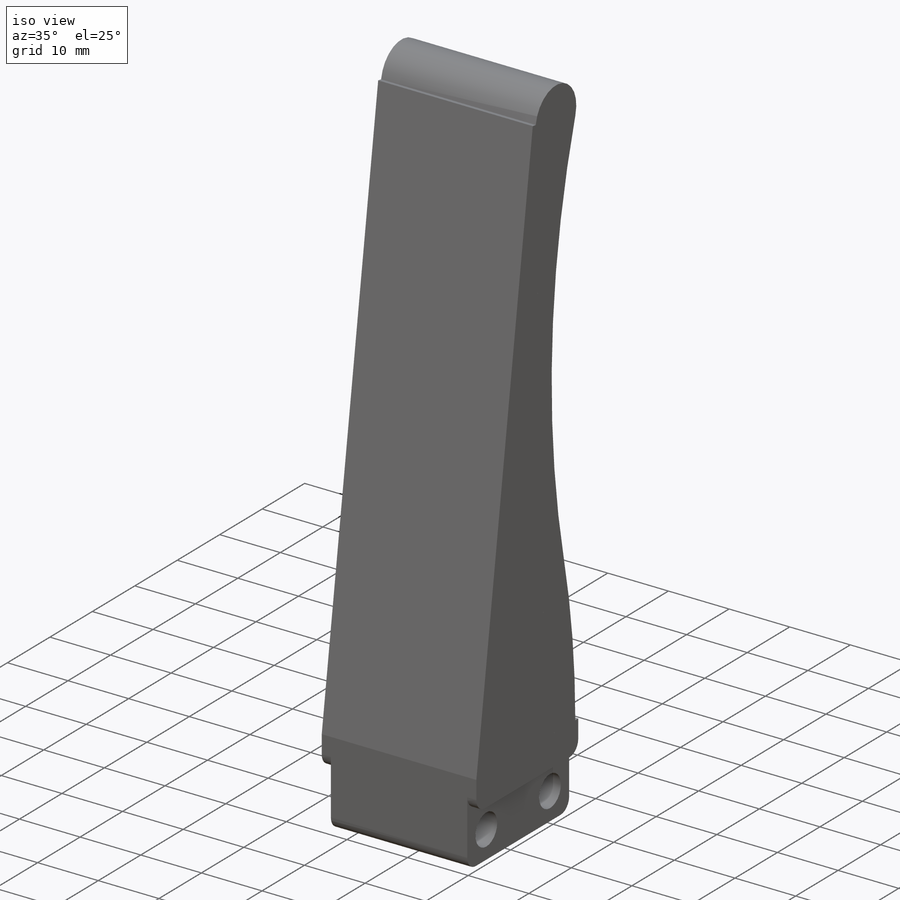
[diagram: iso view]
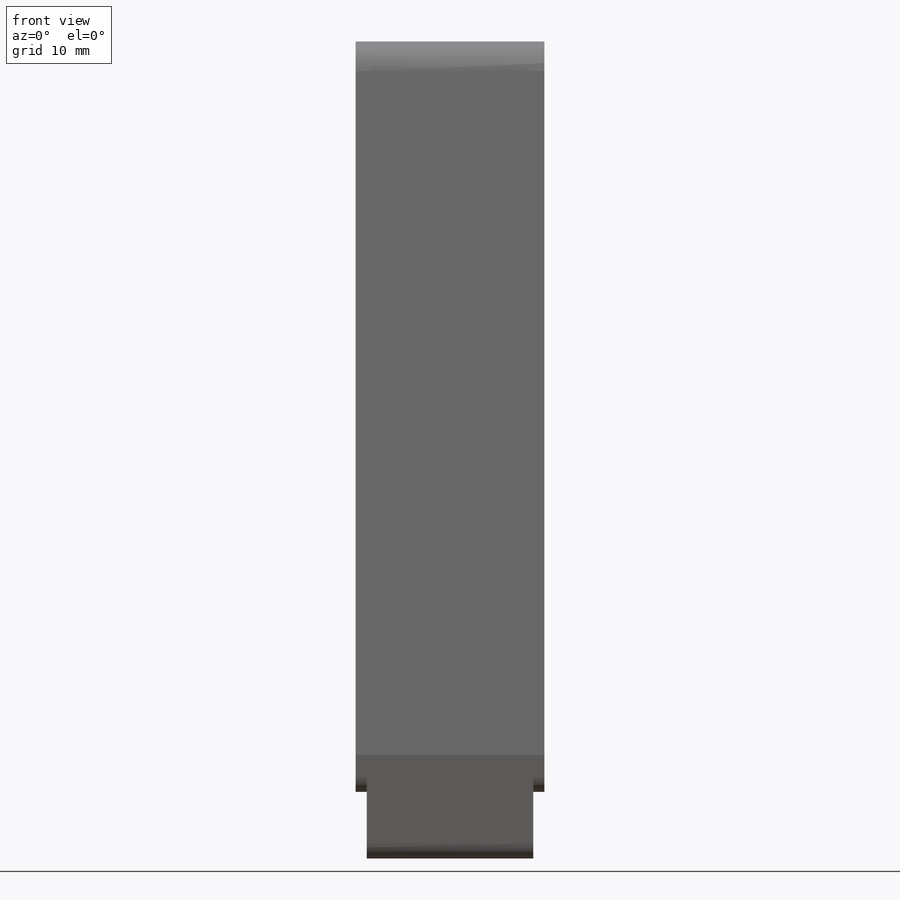
[diagram: front view]
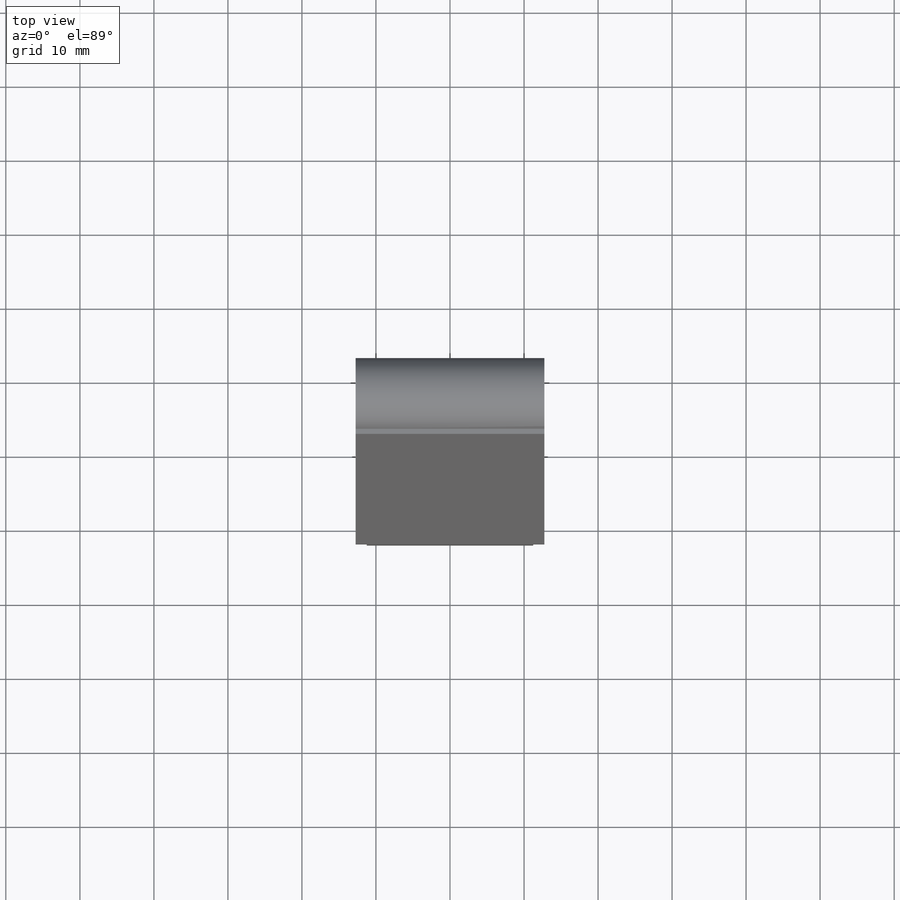
[diagram: top view]
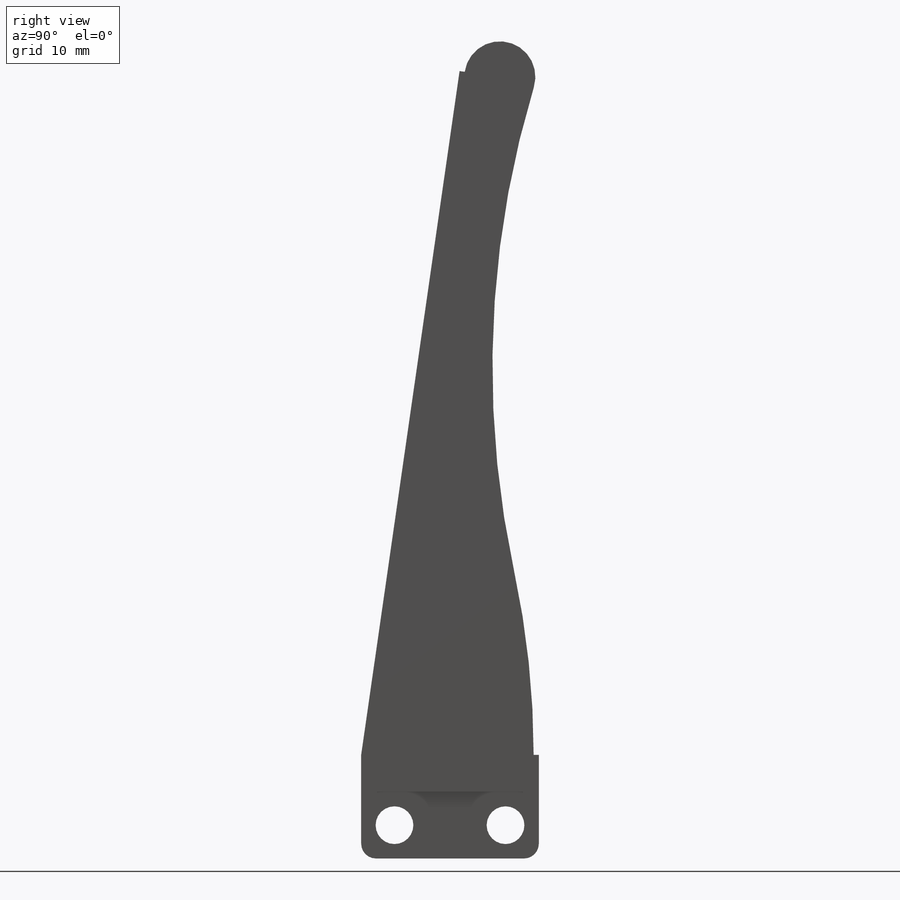
[diagram: right view]
SOLIDWORKS PART (.sldprt)
format: sldprt  version: not decoded by parser v0  size: 879,104 bytes
history: native  units: mm
features: sketch x8, extrude x3, cut_extrude x3, material x1 + 1 further entry (+18 scaffold rows collapsed; 4 parser-record rows omitted)
feature tree (38):
  scaffold x18  (default folders/planes/origin — collapsed)
  material  "ABS"
  sketch  "Sketch1-thumb_base"  dims[D1=9.0mm D2=5.0mm D3=22.5mm D4=1.5mm]
  sketch  "Sketch2-thumb_base"  dims[D2=5.1mm D1=15.0mm]
  "thumb_base"
  parser-record x4  (decoder bookkeeping rows leaked as tree rows — omitted from the tree; the rows remain in map.json)
  sketch  "Sketch3"  dims[D2=130.0mm D4=5.5mm D1=90.0mm D3=25.0mm]
  extrude  "Thumb Frame"  [1 undecoded]
  sketch  "Sketch4"  dims[D1=0.7mm]
  cut_extrude  "Cavity - Pad"  [1 undecoded]
  sketch  "Sketch5"  dims[D1=1.0mm D2=3.0mm D3=13.0]
  extrude  "Pad Hooks"  [1 undecoded]
  sketch  "Sketch6"
  cut_extrude  "Clearance - Pad Cut"  [1 undecoded]
  sketch  "Sketch7"  dims[D1=0.0mm]
  extrude  "Pad Material"  [1 undecoded]
  sketch  "Sketch8"
  cut_extrude  "Wall Removal"  [1 undecoded]
decode coverage: 6 of 14 modeling features carry decoded parameters; 1 rows unclassified (native names shown)
note: 6 parameter values undecoded
summary: no parameter record found for 6 features
note: suppression state not decoded; provenance and decode notes live in map.json
